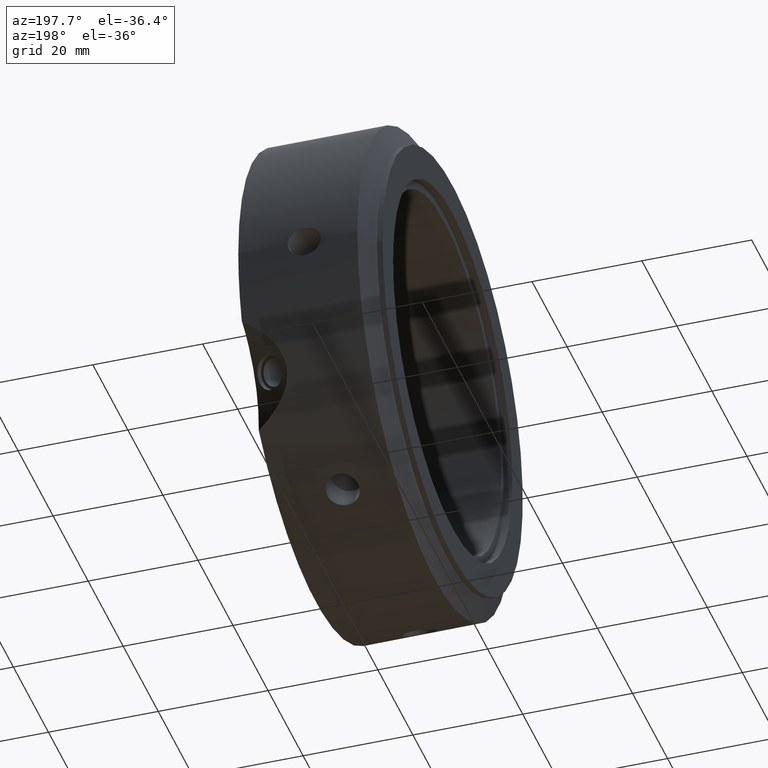
[diagram: clean part render]
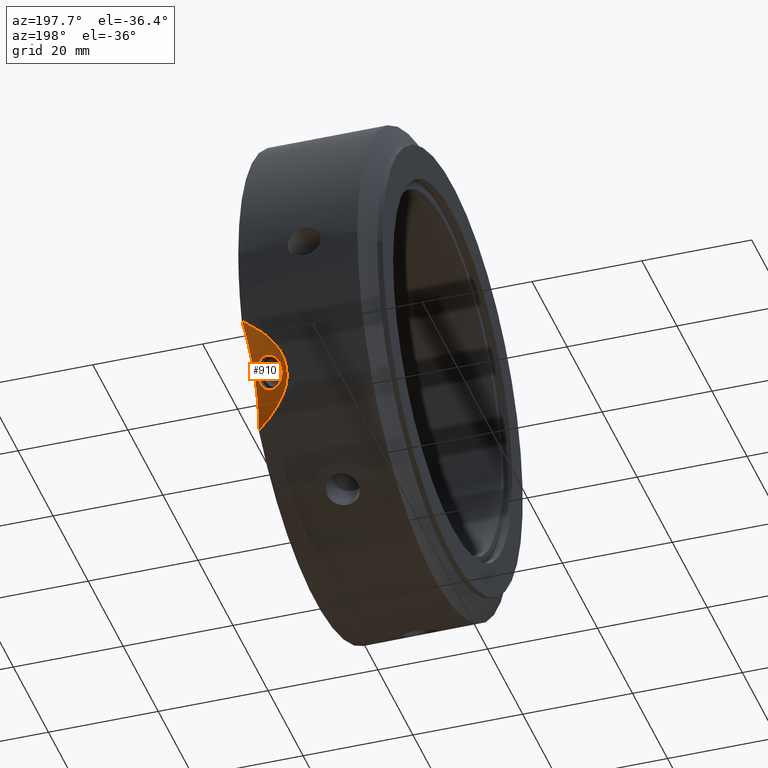
[diagram: same view with one face highlighted and labeled with its STEP entity id]
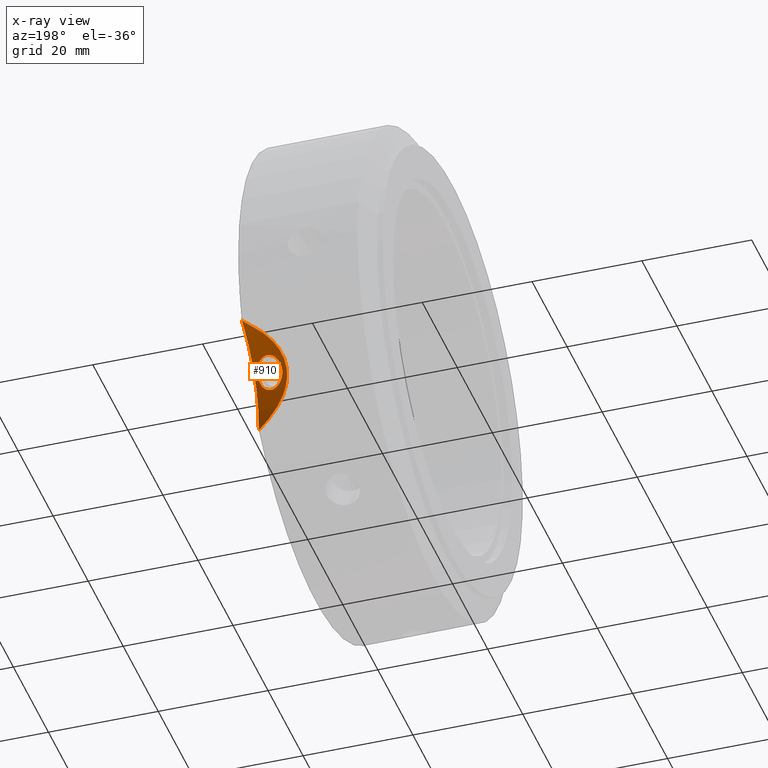
[diagram: x-ray of the same camera — body ghosted, the highlighted face saturated]
A machine part, auxiliary view. The second image highlights one B-rep face of the part: STEP entity #910.
The next image is the same camera in x-ray: the body ghosted, the highlighted face saturated — about 0% of this face is hidden behind the body in this view.
In plain terms, the highlighted cylindrical surface (partial cylindrical patch) has radius 20 mm, axis along (-0.866, 0.433, -0.25).
Its self-contained STEP definition (entity closure, byte-faithful):
#814=CARTESIAN_POINT('',(21.81247336968881,37.993710054533182,-18.413842085440631));
#815=VERTEX_POINT('',#814);
#816=CARTESIAN_POINT('',(21.812473369688806,37.993710054533175,-18.413842085440628));
#817=CARTESIAN_POINT('',(22.144691152481819,37.82760116313667,-18.317939072278065));
#818=CARTESIAN_POINT('',(22.492531710719959,37.602965459972509,-18.276912399671929));
#819=CARTESIAN_POINT('',(23.120996924315325,37.088691814290812,-18.33962561448406));
#820=CARTESIAN_POINT('',(23.401997002324613,36.799542759713823,-18.443610619256347));
#821=CARTESIAN_POINT('',(23.841108176952453,36.250858229679544,-18.751423091058427));
#822=CARTESIAN_POINT('',(24.028717986781444,35.954595989468899,-18.975935237074992));
#823=CARTESIAN_POINT('',(24.276467167295522,35.411129418588743,-19.529671538704001));
#824=CARTESIAN_POINT('',(24.336885557231327,35.164375823591151,-19.85921306116548));
#825=CARTESIAN_POINT('',(24.336885557231327,34.780770921932586,-20.523636240870577));
#826=CARTESIAN_POINT('',(24.276467167295522,34.618756389377936,-20.902101883844377));
#827=CARTESIAN_POINT('',(24.028717986781444,34.410939970609661,-21.649625891148702));
#828=CARTESIAN_POINT('',(23.841108176952453,34.364637868806469,-22.018452590361491));
#829=CARTESIAN_POINT('',(23.401997002324613,34.372406713641325,-22.647533567935735));
#830=CARTESIAN_POINT('',(23.120996924315325,34.426927585184373,-22.949936497065806));
#831=CARTESIAN_POINT('',(22.492531710719959,34.629753170844921,-23.426667146129063));
#832=CARTESIAN_POINT('',(22.144691152481826,34.777601163136673,-23.600694035363144));
#833=CARTESIAN_POINT('',(21.480255586895808,35.109818945929682,-23.792500061688266));
#834=CARTESIAN_POINT('',(21.120093460048786,35.315972296180512,-23.822855942864635));
#835=CARTESIAN_POINT('',(20.447311237579978,35.76377042855205,-23.721763072548363));
#836=CARTESIAN_POINT('',(20.13497623551531,36.005917097045973,-23.590641227518461));
#837=CARTESIAN_POINT('',(19.637193960766819,36.46659497689928,-23.232018092543921));
#838=CARTESIAN_POINT('',(19.418408986648604,36.716094470676083,-22.980507462285729));
#839=CARTESIAN_POINT('',(19.126709320335632,37.193635312857893,-22.388708923446213));
#840=CARTESIAN_POINT('',(19.054130594146251,37.422148403475127,-22.048636240870579));
#841=CARTESIAN_POINT('',(19.054130594146251,37.805753305133692,-21.384213061165482));
#842=CARTESIAN_POINT('',(19.126709320335632,37.986008342068693,-21.016278578305844));
#843=CARTESIAN_POINT('',(19.418408986648604,38.259750489535321,-20.306816808212027));
#844=CARTESIAN_POINT('',(19.637193960766819,38.352815337772348,-19.964988593240861));
#845=CARTESIAN_POINT('',(20.13497623551531,38.433053143118471,-19.386718278839069));
#846=CARTESIAN_POINT('',(20.447311237579967,38.425534657658488,-19.111452189966617));
#847=CARTESIAN_POINT('',(21.120093460048782,38.289184585308092,-18.673101196407494));
#848=CARTESIAN_POINT('',(21.480255586895804,38.159818945929672,-18.50974509860319));
#849=CARTESIAN_POINT('',(21.81247336968881,37.993710054533175,-18.413842085440628));
#850=B_SPLINE_CURVE_WITH_KNOTS('',3,(#816,#817,#818,#819,#820,#821,#822,#823,#824,#825,#826,#827,#828,#829,#830,#831,#832,#833,#834,#835,#836,#837,#838,#839,#840,#841,#842,#843,#844,#845,#846,#847,#848,#849),.UNSPECIFIED.,.T.,.U.,(4,2,2,2,2,2,2,2,2,2,2,2,2,2,2,2,4),(0.0,0.115083615795075,0.230167231590149,0.345248702087718,0.460330172585288,0.575411643082857,0.690493113580426,0.805576729375501,0.920660345170575,1.03574396096565,1.150827576760724,1.265909047258294,1.380990517755863,1.496071988253432,1.611153458751002,1.726237074546076,1.84132069034115),.UNSPECIFIED.);
#851=EDGE_CURVE('',#815,#815,#850,.T.);
#868=CARTESIAN_POINT('',(28.32150757575118,52.98026236350195,-30.588168737304883));
#869=DIRECTION('',(-0.866025403784438,0.43301270189222,-0.250000000000001));
#870=DIRECTION('',(-0.5,-0.75,0.43301270189222));
#871=AXIS2_PLACEMENT_3D('',#868,#869,#870);
#872=CYLINDRICAL_SURFACE('',#871,20.000000000000011);
#873=CARTESIAN_POINT('',(24.999999999999986,32.301979472688544,-29.87611290221686));
#874=VERTEX_POINT('',#873);
#875=CARTESIAN_POINT('',(24.999999999999986,42.024462475996074,-13.036278364763378));
#876=VERTEX_POINT('',#875);
#877=CARTESIAN_POINT('',(24.999999999999993,54.641016151377542,-31.547005383792552));
#878=DIRECTION('',(-1.0,0.0,0.0));
#879=DIRECTION('',(0.0,-0.866025403784438,0.500000000000001));
#880=AXIS2_PLACEMENT_3D('',#877,#878,#879);
#881=ELLIPSE('',#880,23.094010767585047,20.000000000000014);
#882=EDGE_CURVE('',#874,#876,#881,.T.);
#883=ORIENTED_EDGE('',*,*,#882,.F.);
#884=CARTESIAN_POINT('',(24.999999999999964,42.024462475996089,-13.036278364763351));
#885=CARTESIAN_POINT('',(24.42718300322241,41.908836027969343,-13.409018129163165));
#886=CARTESIAN_POINT('',(23.87227621470516,41.78385656766396,-13.794500395811465));
#887=CARTESIAN_POINT('',(22.012395466236203,41.308054339824587,-15.190493108608312));
#888=CARTESIAN_POINT('',(20.670407324933336,40.857337234891418,-16.395241108717574));
#889=CARTESIAN_POINT('',(19.188434315199835,39.976049366804112,-18.396928609773607));
#890=CARTESIAN_POINT('',(18.78199730742384,39.647758863475516,-19.097144794740931));
#891=CARTESIAN_POINT('',(18.223393473193738,38.924013254919075,-20.532094740923537));
#892=CARTESIAN_POINT('',(18.071796769724465,38.528347709341247,-21.266944235741008));
#893=CARTESIAN_POINT('',(18.071796769724465,37.681887823689344,-22.733055764259042));
#894=CARTESIAN_POINT('',(18.223393473193742,37.243322266008171,-23.443136925540404));
#895=CARTESIAN_POINT('',(18.78199730742384,36.362491963733142,-24.787393981519003));
#896=CARTESIAN_POINT('',(19.188434315199828,35.920232211074712,-25.421809989706411));
#897=CARTESIAN_POINT('',(20.670407324933326,34.627363918766044,-27.185871422045057));
#898=CARTESIAN_POINT('',(22.012395466236192,33.809380097979513,-28.178577884891993));
#899=CARTESIAN_POINT('',(23.87227621470516,32.83831605911918,-29.288631057776556));
#900=CARTESIAN_POINT('',(24.427183003222414,32.566968353646033,-29.589607578676439));
#901=CARTESIAN_POINT('',(24.999999999999979,32.301979472688529,-29.876112902216864));
#902=B_SPLINE_CURVE_WITH_KNOTS('',3,(#884,#885,#886,#887,#888,#889,#890,#891,#892,#893,#894,#895,#896,#897,#898,#899,#900,#901),.UNSPECIFIED.,.F.,.U.,(4,2,2,2,2,2,2,2,4),(2.282498781001778,2.486725779772551,2.994601711163694,3.248539676859265,3.502477642554836,3.756415608250407,4.010353573945977,4.518229505337119,4.722456504107894),.UNSPECIFIED.);
#903=EDGE_CURVE('',#876,#874,#902,.T.);
#904=ORIENTED_EDGE('',*,*,#903,.F.);
#905=EDGE_LOOP('',(#883,#904));
#906=FACE_OUTER_BOUND('',#905,.T.);
#907=ORIENTED_EDGE('',*,*,#851,.F.);
#908=EDGE_LOOP('',(#907));
#909=FACE_BOUND('',#908,.T.);
#910=ADVANCED_FACE('',(#906,#909),#872,.F.);